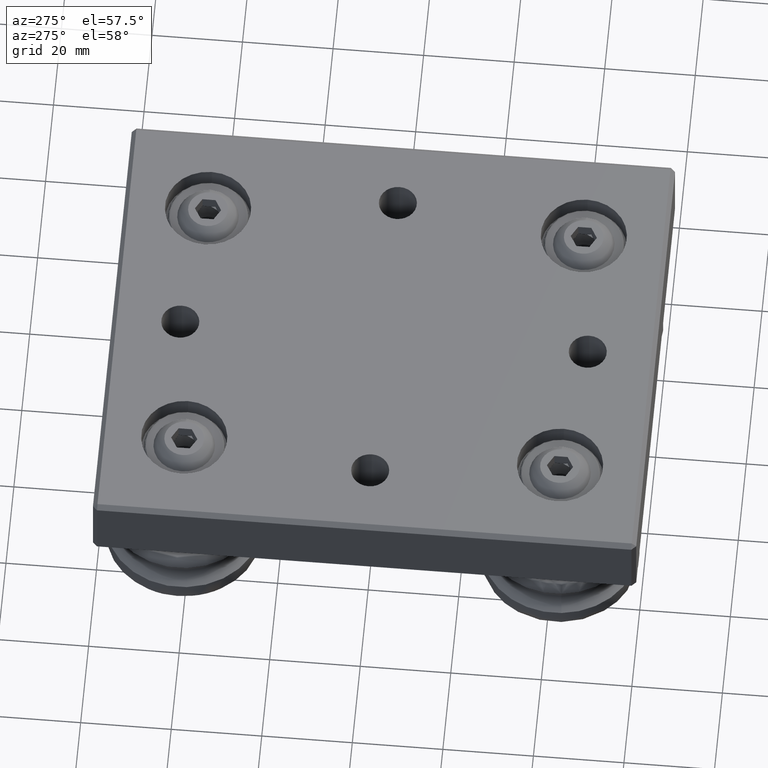
[diagram: clean part render]
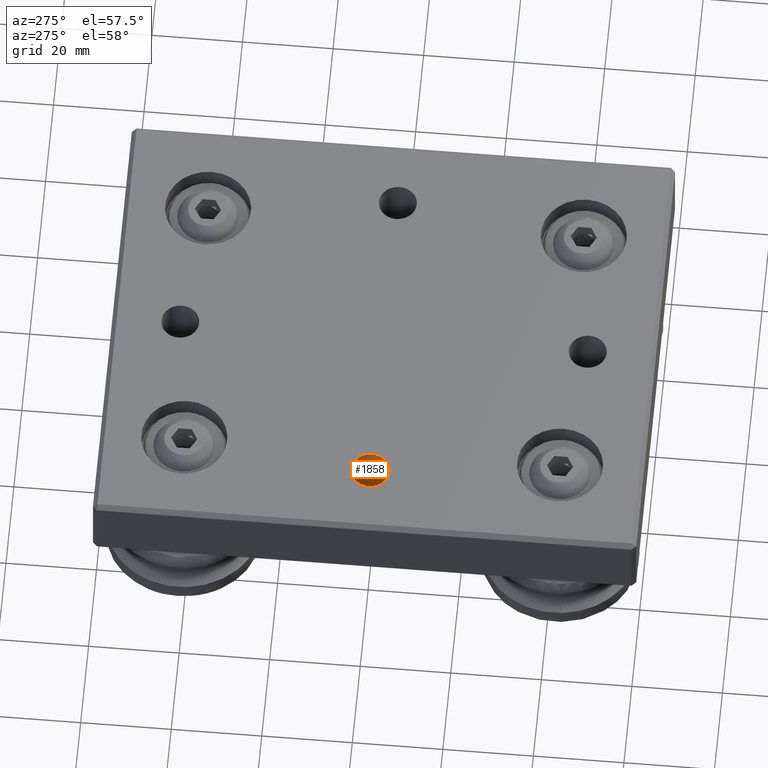
[diagram: same view with one face highlighted and labeled with its STEP entity id]
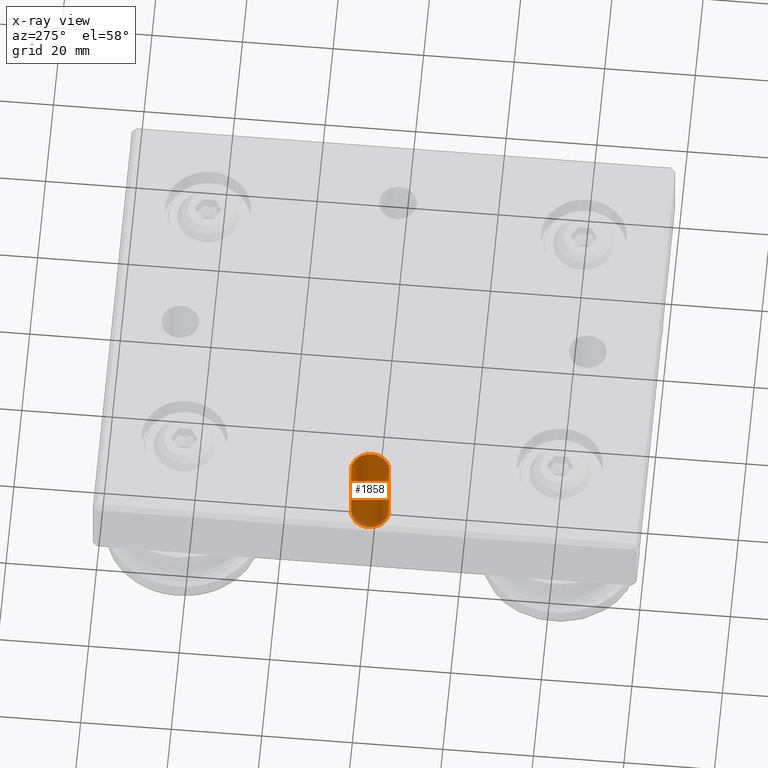
[diagram: x-ray of the same camera — body ghosted, the highlighted face saturated]
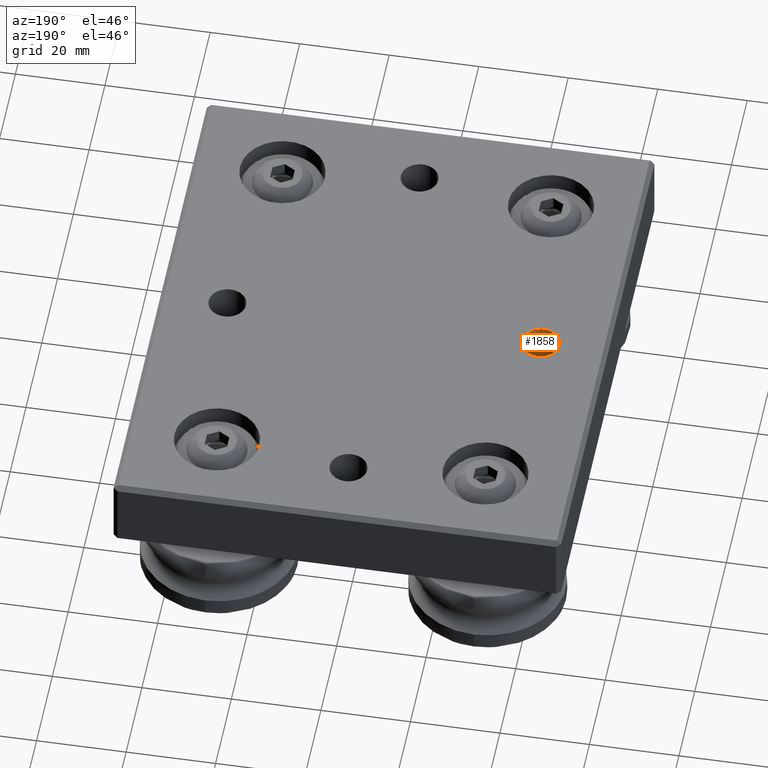
[diagram: same view with one face highlighted and labeled with its STEP entity id]
A machine part, auxiliary view. The second image highlights one B-rep face of the part: STEP entity #1858.
The next image is the same camera in x-ray: the body ghosted, the highlighted face saturated — about 5% of this face is hidden behind the body in this view.
A second angle (auxiliary view) of the same face is appended — the face is thin or edge-on in the first view.
In plain terms, the highlighted cylindrical surface (bore or boss wall) has radius 4.188 mm, axis along (0, 0, 1).
Its self-contained STEP definition (entity closure, byte-faithful):
#168=CYLINDRICAL_SURFACE('',#2080,4.188);
#224=CIRCLE('',#2063,4.188);
#232=CIRCLE('',#2075,4.188);
#349=FACE_OUTER_BOUND('',#487,.T.);
#487=EDGE_LOOP('',(#1376,#1377,#1378,#1379));
#644=LINE('',#2993,#776);
#776=VECTOR('',#2408,4.188);
#887=VERTEX_POINT('',#2962);
#895=VERTEX_POINT('',#2982);
#1058=EDGE_CURVE('',#887,#887,#224,.T.);
#1066=EDGE_CURVE('',#895,#895,#232,.T.);
#1071=EDGE_CURVE('',#887,#895,#644,.T.);
#1376=ORIENTED_EDGE('',*,*,#1058,.F.);
#1377=ORIENTED_EDGE('',*,*,#1071,.T.);
#1378=ORIENTED_EDGE('',*,*,#1066,.F.);
#1379=ORIENTED_EDGE('',*,*,#1071,.F.);
#1858=ADVANCED_FACE('',(#349),#168,.F.);
#2063=AXIS2_PLACEMENT_3D('',#2963,#2370,#2371);
#2075=AXIS2_PLACEMENT_3D('',#2983,#2394,#2395);
#2080=AXIS2_PLACEMENT_3D('',#2992,#2406,#2407);
#2370=DIRECTION('center_axis',(0.,1.,0.));
#2371=DIRECTION('ref_axis',(1.,0.,0.));
#2394=DIRECTION('center_axis',(0.,-1.,0.));
#2395=DIRECTION('ref_axis',(1.,0.,0.));
#2406=DIRECTION('center_axis',(0.,-1.,0.));
#2407=DIRECTION('ref_axis',(1.,0.,0.));
#2408=DIRECTION('',(0.,1.,0.));
#2962=CARTESIAN_POINT('',(30.812,0.,-5.12882079482912E-16));
#2963=CARTESIAN_POINT('Origin',(35.,0.,0.));
#2982=CARTESIAN_POINT('',(30.812,16.75,-5.12882079482912E-16));
#2983=CARTESIAN_POINT('Origin',(35.,16.75,0.));
#2992=CARTESIAN_POINT('Origin',(35.,157.100485358894,0.));
#2993=CARTESIAN_POINT('',(30.812,157.100485358894,-5.12882079482912E-16));